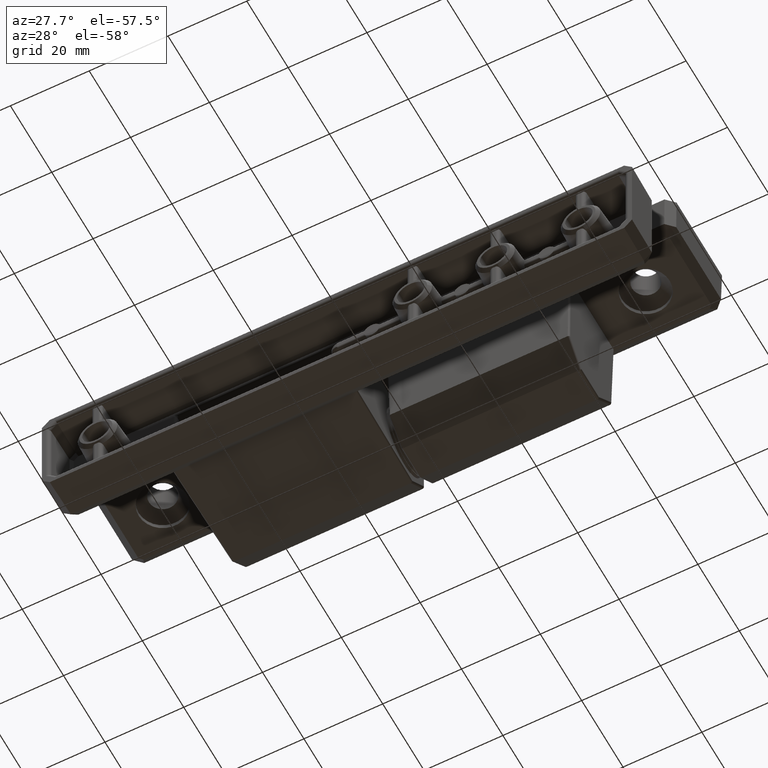
[diagram: clean part render]
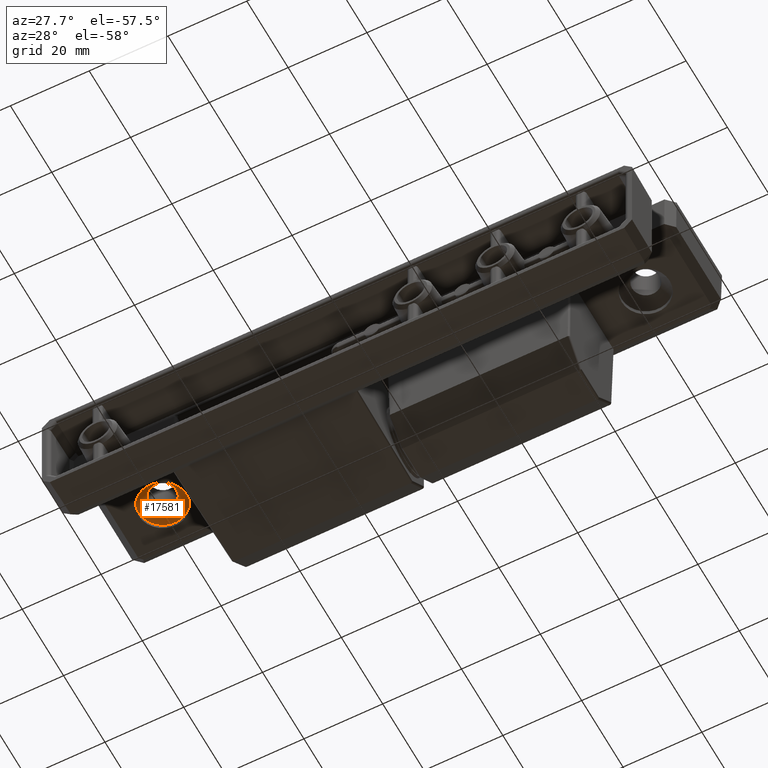
[diagram: same view with one face highlighted and labeled with its STEP entity id]
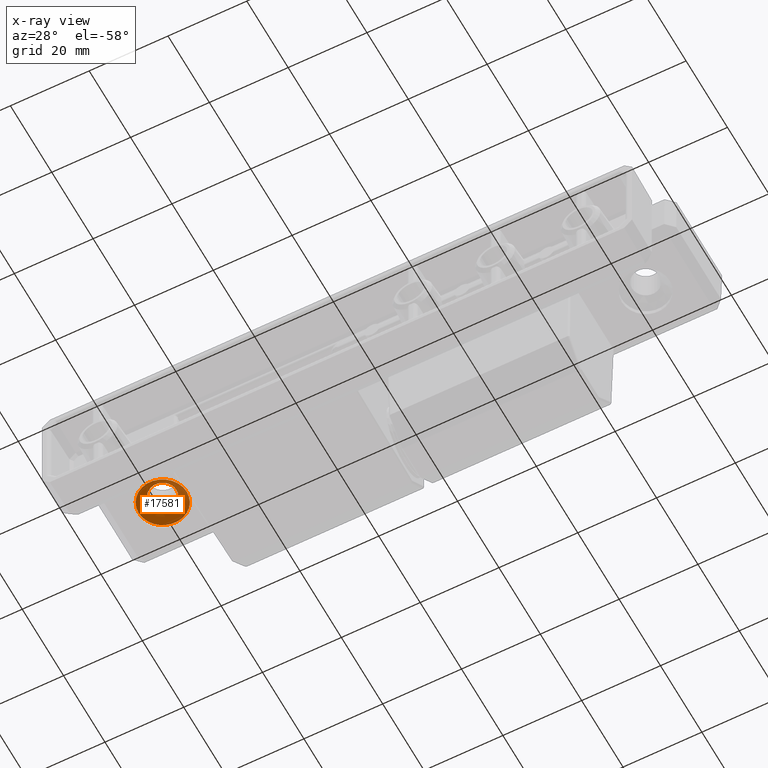
[diagram: x-ray of the same camera — body ghosted, the highlighted face saturated]
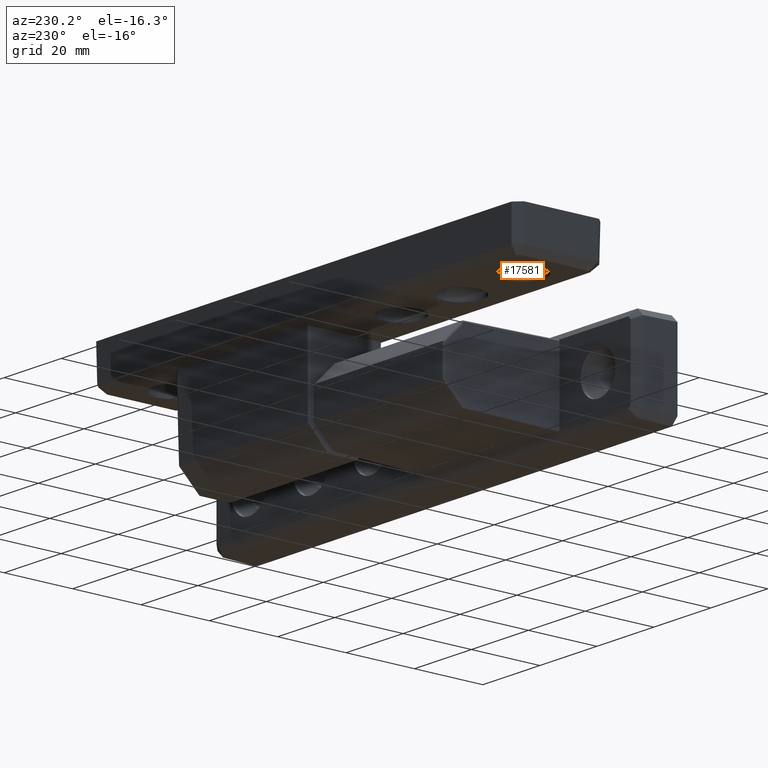
[diagram: same view with one face highlighted and labeled with its STEP entity id]
A machine part, auxiliary view. The second image highlights one B-rep face of the part: STEP entity #17581.
The next image is the same camera in x-ray: the body ghosted, the highlighted face saturated — about 0% of this face is hidden behind the body in this view.
A second angle (auxiliary view) of the same face is appended — the face is thin or edge-on in the first view.
In plain terms, the highlighted conical surface has half-angle 45 deg.
Its self-contained STEP definition (entity closure, byte-faithful):
#4599=FACE_BOUND('',#6006,.T.);
#5023=FACE_OUTER_BOUND('',#6005,.T.);
#6005=EDGE_LOOP('',(#13094));
#6006=EDGE_LOOP('',(#13095));
#6669=CIRCLE('',#18383,3.5);
#6735=CIRCLE('',#18592,6.1);
#7382=VERTEX_POINT('',#25906);
#7575=VERTEX_POINT('',#27091);
#9275=EDGE_CURVE('',#7382,#7382,#6669,.T.);
#9588=EDGE_CURVE('',#7575,#7575,#6735,.T.);
#13094=ORIENTED_EDGE('',*,*,#9588,.F.);
#13095=ORIENTED_EDGE('',*,*,#9275,.F.);
#16214=CONICAL_SURFACE('',#18595,3.5,45.);
#17581=ADVANCED_FACE('',(#5023,#4599),#16214,.F.);
#18383=AXIS2_PLACEMENT_3D('',#25907,#20304,#20305);
#18592=AXIS2_PLACEMENT_3D('',#27092,#20845,#20846);
#18595=AXIS2_PLACEMENT_3D('',#27095,#20851,#20852);
#20304=DIRECTION('center_axis',(0.,0.,-1.));
#20305=DIRECTION('ref_axis',(1.,0.,0.));
#20845=DIRECTION('center_axis',(0.,0.,1.));
#20846=DIRECTION('ref_axis',(1.,0.,0.));
#20851=DIRECTION('center_axis',(0.,0.,-1.));
#20852=DIRECTION('ref_axis',(-1.,0.,0.));
#25906=CARTESIAN_POINT('',(-130.7,-12.9999999999999,-8.10000000000001));
#25907=CARTESIAN_POINT('Origin',(-134.2,-12.9999999999999,-8.10000000000001));
#27091=CARTESIAN_POINT('',(-128.1,-12.9999999999999,-10.7));
#27092=CARTESIAN_POINT('Origin',(-134.2,-12.9999999999999,-10.7));
#27095=CARTESIAN_POINT('Origin',(-134.2,-12.9999999999999,-8.10000000000001));